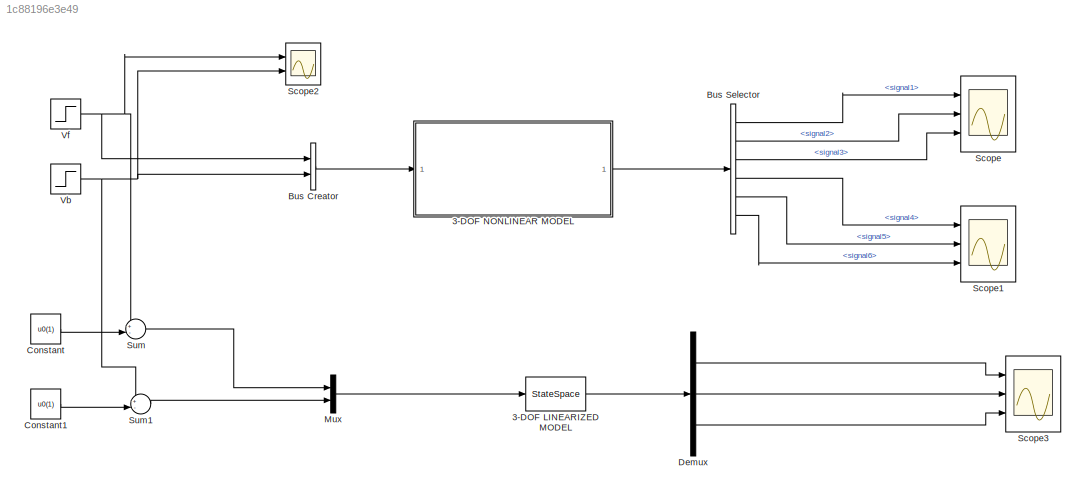
MODEL slx_1c88196e3e49
KIND model
CONFIG AbsTol = auto
CONFIG EnableMultiTasking = on
CONFIG FixedStep = auto
CONFIG MaxStep = auto
CONFIG MinStep = auto
CONFIG RelTol = 1e-3
CONFIG SampleTimeConstraint = Unconstrained
CONFIG SolverName = ode45
CONFIG StartTime = 0.0
CONFIG StopTime = 10
BLOCK [StateSpace] 3-DOF LINEARIZED MODEL
  A = Ad
  B = Bd
  C = Cd
  D = Dd
  InitialCondition = 0
  Ports = [1, 1]
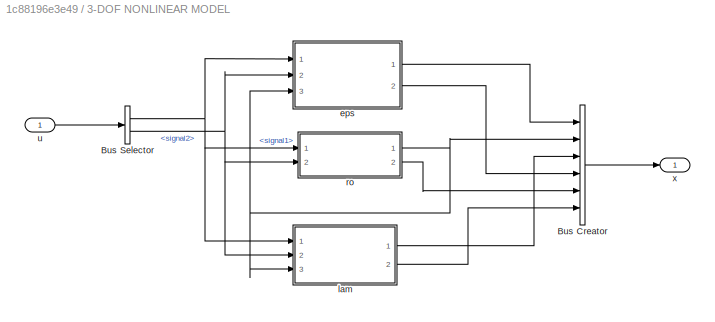
BLOCK [SubSystem] 3-DOF NONLINEAR MODEL
  Ports = [1, 1]
  RequestExecContextInheritance = off
BLOCK [BusCreator] 3-DOF NONLINEAR MODEL/Bus Creator
  DisplayOption = bar
  InheritFromInputs = on
  Inputs = 6
  Ports = [6, 1]
BLOCK [BusSelector] 3-DOF NONLINEAR MODEL/Bus Selector
  OutputSignals = signal1,signal2
  Ports = [1, 2]
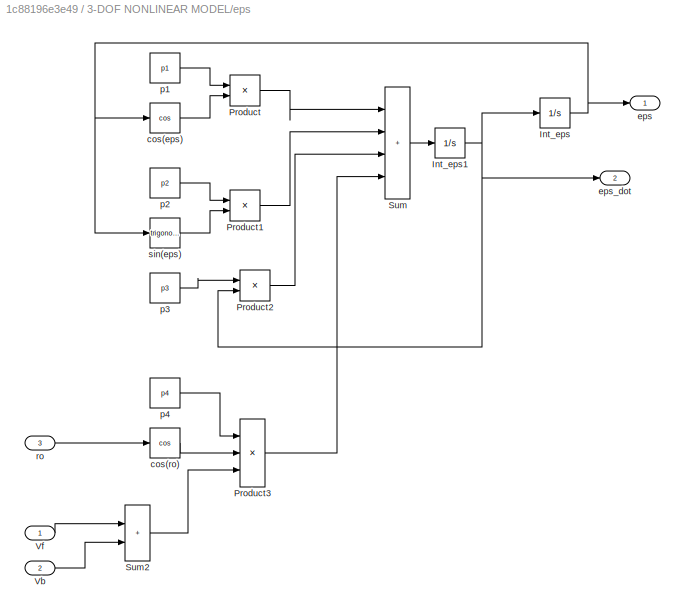
BLOCK [SubSystem] 3-DOF NONLINEAR MODEL/eps
  Ports = [3, 2]
  RequestExecContextInheritance = off
BLOCK [Integrator] 3-DOF NONLINEAR MODEL/eps/Int_eps
  ContinuousStateAttributes = 'eps'
  InitialCondition = eps0
  Ports = [1, 1]
BLOCK [Integrator] 3-DOF NONLINEAR MODEL/eps/Int_eps1
  ContinuousStateAttributes = 'epsdot'
  InitialCondition = eps0dot
  Ports = [1, 1]
BLOCK [Product] 3-DOF NONLINEAR MODEL/eps/Product
  Ports = [2, 1]
  RndMeth = Zero
BLOCK [Product] 3-DOF NONLINEAR MODEL/eps/Product1
  Ports = [2, 1]
  RndMeth = Zero
BLOCK [Product] 3-DOF NONLINEAR MODEL/eps/Product2
  Ports = [2, 1]
  RndMeth = Zero
BLOCK [Product] 3-DOF NONLINEAR MODEL/eps/Product3
  Inputs = 3
  Ports = [3, 1]
  RndMeth = Zero
BLOCK [Sum] 3-DOF NONLINEAR MODEL/eps/Sum
  IconShape = rectangular
  Inputs = |++++
  Ports = [4, 1]
BLOCK [Sum] 3-DOF NONLINEAR MODEL/eps/Sum2
  IconShape = rectangular
  Inputs = |++
  Ports = [2, 1]
BLOCK [Inport] 3-DOF NONLINEAR MODEL/eps/Vb
  Port = 2
BLOCK [Inport] 3-DOF NONLINEAR MODEL/eps/Vf
BLOCK [Trigonometry] 3-DOF NONLINEAR MODEL/eps/cos(eps)
  Operator = cos
  Ports = [1, 1]
BLOCK [Trigonometry] 3-DOF NONLINEAR MODEL/eps/cos(ro)
  Operator = cos
  Ports = [1, 1]
BLOCK [Outport] 3-DOF NONLINEAR MODEL/eps/eps
BLOCK [Outport] 3-DOF NONLINEAR MODEL/eps/eps_dot
  Port = 2
BLOCK [Constant] 3-DOF NONLINEAR MODEL/eps/p1
  Value = p1
BLOCK [Constant] 3-DOF NONLINEAR MODEL/eps/p2
  Value = p2
BLOCK [Constant] 3-DOF NONLINEAR MODEL/eps/p3
  Value = p3
BLOCK [Constant] 3-DOF NONLINEAR MODEL/eps/p4
  Value = p4
BLOCK [Inport] 3-DOF NONLINEAR MODEL/eps/ro
  Port = 3
BLOCK [Trigonometry] 3-DOF NONLINEAR MODEL/eps/sin(eps)
  Ports = [1, 1]
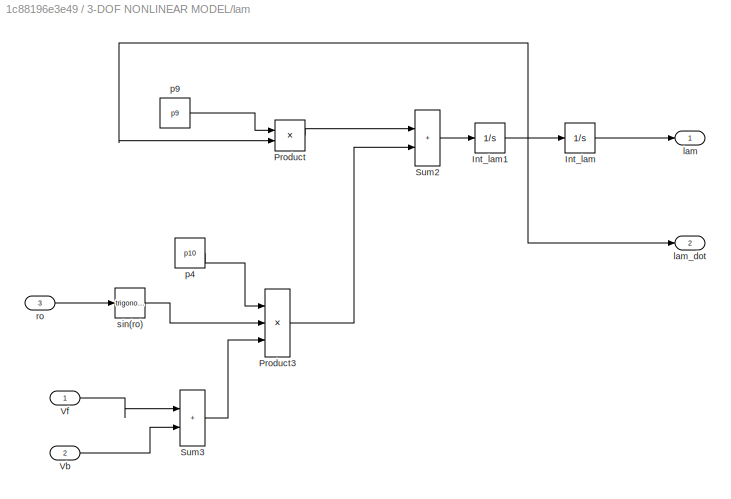
BLOCK [SubSystem] 3-DOF NONLINEAR MODEL/lam
  Ports = [3, 2]
  RequestExecContextInheritance = off
BLOCK [Integrator] 3-DOF NONLINEAR MODEL/lam/Int_lam
  ContinuousStateAttributes = 'lam'
  InitialCondition = lam0
  Ports = [1, 1]
BLOCK [Integrator] 3-DOF NONLINEAR MODEL/lam/Int_lam1
  ContinuousStateAttributes = 'lamdot'
  InitialCondition = lam0dot
  Ports = [1, 1]
BLOCK [Product] 3-DOF NONLINEAR MODEL/lam/Product
  Ports = [2, 1]
  RndMeth = Zero
BLOCK [Product] 3-DOF NONLINEAR MODEL/lam/Product3
  Inputs = 3
  Ports = [3, 1]
  RndMeth = Zero
BLOCK [Sum] 3-DOF NONLINEAR MODEL/lam/Sum2
  IconShape = rectangular
  Inputs = |++
  Ports = [2, 1]
BLOCK [Sum] 3-DOF NONLINEAR MODEL/lam/Sum3
  IconShape = rectangular
  Inputs = |++
  Ports = [2, 1]
BLOCK [Inport] 3-DOF NONLINEAR MODEL/lam/Vb
  Port = 2
BLOCK [Inport] 3-DOF NONLINEAR MODEL/lam/Vf
BLOCK [Outport] 3-DOF NONLINEAR MODEL/lam/lam
BLOCK [Outport] 3-DOF NONLINEAR MODEL/lam/lam_dot
  Port = 2
BLOCK [Constant] 3-DOF NONLINEAR MODEL/lam/p4
  Value = p10
BLOCK [Constant] 3-DOF NONLINEAR MODEL/lam/p9
  Value = p9
BLOCK [Inport] 3-DOF NONLINEAR MODEL/lam/ro
  Port = 3
BLOCK [Trigonometry] 3-DOF NONLINEAR MODEL/lam/sin(ro)
  Ports = [1, 1]
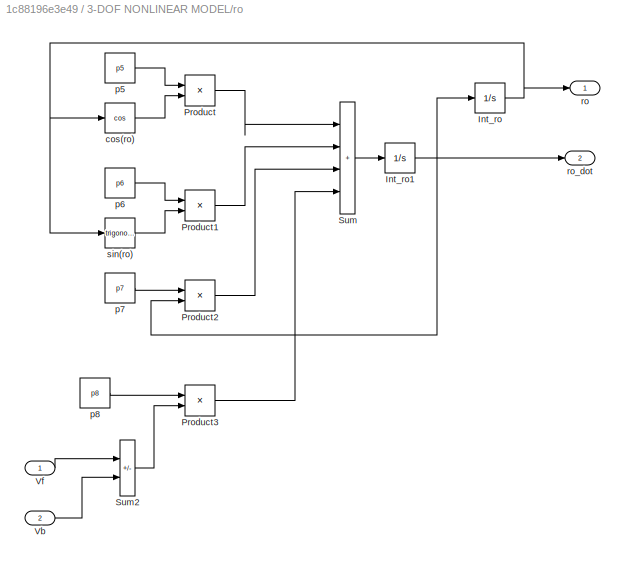
BLOCK [SubSystem] 3-DOF NONLINEAR MODEL/ro
  Ports = [2, 2]
  RequestExecContextInheritance = off
BLOCK [Integrator] 3-DOF NONLINEAR MODEL/ro/Int_ro
  ContinuousStateAttributes = 'ro'
  InitialCondition = ro0
  Ports = [1, 1]
BLOCK [Integrator] 3-DOF NONLINEAR MODEL/ro/Int_ro1
  ContinuousStateAttributes = 'rodot'
  InitialCondition = ro0dot
  Ports = [1, 1]
BLOCK [Product] 3-DOF NONLINEAR MODEL/ro/Product
  Ports = [2, 1]
  RndMeth = Zero
BLOCK [Product] 3-DOF NONLINEAR MODEL/ro/Product1
  Ports = [2, 1]
  RndMeth = Zero
BLOCK [Product] 3-DOF NONLINEAR MODEL/ro/Product2
  Ports = [2, 1]
  RndMeth = Zero
BLOCK [Product] 3-DOF NONLINEAR MODEL/ro/Product3
  Ports = [2, 1]
  RndMeth = Zero
BLOCK [Sum] 3-DOF NONLINEAR MODEL/ro/Sum
  IconShape = rectangular
  Inputs = |++++
  Ports = [4, 1]
BLOCK [Sum] 3-DOF NONLINEAR MODEL/ro/Sum2
  IconShape = rectangular
  Inputs = |+-
  Ports = [2, 1]
BLOCK [Inport] 3-DOF NONLINEAR MODEL/ro/Vb
  Port = 2
BLOCK [Inport] 3-DOF NONLINEAR MODEL/ro/Vf
BLOCK [Trigonometry] 3-DOF NONLINEAR MODEL/ro/cos(ro)
  Operator = cos
  Ports = [1, 1]
BLOCK [Constant] 3-DOF NONLINEAR MODEL/ro/p5
  Value = p5
BLOCK [Constant] 3-DOF NONLINEAR MODEL/ro/p6
  Value = p6
BLOCK [Constant] 3-DOF NONLINEAR MODEL/ro/p7
  Value = p7
BLOCK [Constant] 3-DOF NONLINEAR MODEL/ro/p8
  Value = p8
BLOCK [Outport] 3-DOF NONLINEAR MODEL/ro/ro
BLOCK [Outport] 3-DOF NONLINEAR MODEL/ro/ro_dot
  Port = 2
BLOCK [Trigonometry] 3-DOF NONLINEAR MODEL/ro/sin(ro)
  Ports = [1, 1]
BLOCK [Inport] 3-DOF NONLINEAR MODEL/u
BLOCK [Outport] 3-DOF NONLINEAR MODEL/x
BLOCK [BusCreator] Bus Creator
  DisplayOption = bar
  InheritFromInputs = on
  Inputs = 2
  Ports = [2, 1]
BLOCK [BusSelector] Bus Selector
  OutputSignals = signal1,signal2,signal3,signal4,signal5,signal6
  Ports = [1, 6]
BLOCK [Constant] Constant
  Value = u0(1)
BLOCK [Constant] Constant1
  Value = u0(1)
BLOCK [Demux] Demux
  Outputs = 3
  Ports = [1, 3]
BLOCK [Mux] Mux
  DisplayOption = bar
  Inputs = 2
  Ports = [2, 1]
BLOCK [Scope] Scope
  Floating = off
  NumInputPorts = 3
  Ports = [3]
  ScopeSpecificationString = Simulink.scopes.TimeScopeBlockCfg('CurrentConfiguration', extmgr.ConfigurationSet(extmgr.Configuration('Core','General UI',true),extmgr.Configuration('Core','Source UI',true),extmgr.Configuration('Sources','WiredSimulink',true,'DataLoggingSaveFormat','StructureWithTime','DataLoggingDecimation','1','DataLoggingDecimateData',true),extmgr.Configuration('Visuals','Time Domain',true,'SerializedDisplays...<+2995ch>
BLOCK [Scope] Scope1
  Floating = off
  NumInputPorts = 3
  Ports = [3]
  ScopeSpecificationString = Simulink.scopes.TimeScopeBlockCfg('CurrentConfiguration', extmgr.ConfigurationSet(extmgr.Configuration('Core','General UI',true),extmgr.Configuration('Core','Source UI',true),extmgr.Configuration('Sources','WiredSimulink',true,'DataLoggingVariableName','ScopeData1','DataLoggingSaveFormat','StructureWithTime','DataLoggingDecimation','1','DataLoggingDecimateData',true),extmgr.Configuration('Visuals'...<+3026ch>
BLOCK [Scope] Scope2
  Floating = off
  NumInputPorts = 2
  Ports = [2]
  ScopeSpecificationString = Simulink.scopes.TimeScopeBlockCfg('CurrentConfiguration', extmgr.ConfigurationSet(extmgr.Configuration('Core','General UI',true),extmgr.Configuration('Core','Source UI',true),extmgr.Configuration('Sources','WiredSimulink',true,'DataLoggingVariableName','ScopeData2','DataLoggingSaveFormat','StructureWithTime','DataLoggingDecimation','1','DataLoggingDecimateData',true),extmgr.Configuration('Visuals'...<+2377ch>
BLOCK [Scope] Scope3
  Floating = off
  NumInputPorts = 3
  Ports = [3]
  ScopeSpecificationString = Simulink.scopes.TimeScopeBlockCfg('CurrentConfiguration', extmgr.ConfigurationSet(extmgr.Configuration('Core','General UI',true),extmgr.Configuration('Core','Source UI',true),extmgr.Configuration('Sources','WiredSimulink',true,'DataLoggingSaveFormat','StructureWithTime','DataLoggingDecimation','1','DataLoggingDecimateData',true,'DataLoggingVariableName','ScopeData1'),extmgr.Configuration('Visuals'...<+2956ch>
BLOCK [Sum] Sum
  Inputs = +-|
  Ports = [2, 1]
BLOCK [Sum] Sum1
  Inputs = +-|
  Ports = [2, 1]
BLOCK [Step] Vb
  After = u0(1)
  SampleTime = 0
  Time = 0
BLOCK [Step] Vf
  After = u0(1)
  SampleTime = 0
  Time = 0
LINE 3-DOF LINEARIZED MODEL:1 -> Demux:1
LINE 3-DOF NONLINEAR MODEL/Bus Creator:1 -> 3-DOF NONLINEAR MODEL/x:1
NET 3-DOF NONLINEAR MODEL/Bus Selector:1 -> 3-DOF NONLINEAR MODEL/eps:1, 3-DOF NONLINEAR MODEL/lam:1, 3-DOF NONLINEAR MODEL/ro:1
NET 3-DOF NONLINEAR MODEL/Bus Selector:2 -> 3-DOF NONLINEAR MODEL/eps:2, 3-DOF NONLINEAR MODEL/lam:2, 3-DOF NONLINEAR MODEL/ro:2
NET 3-DOF NONLINEAR MODEL/eps/Int_eps1:1 -> 3-DOF NONLINEAR MODEL/eps/Int_eps:1, 3-DOF NONLINEAR MODEL/eps/Product2:2, 3-DOF NONLINEAR MODEL/eps/eps_dot:1
NET 3-DOF NONLINEAR MODEL/eps/Int_eps:1 -> 3-DOF NONLINEAR MODEL/eps/cos(eps):1, 3-DOF NONLINEAR MODEL/eps/eps:1, 3-DOF NONLINEAR MODEL/eps/sin(eps):1
LINE 3-DOF NONLINEAR MODEL/eps/Product1:1 -> 3-DOF NONLINEAR MODEL/eps/Sum:2
LINE 3-DOF NONLINEAR MODEL/eps/Product2:1 -> 3-DOF NONLINEAR MODEL/eps/Sum:3
LINE 3-DOF NONLINEAR MODEL/eps/Product3:1 -> 3-DOF NONLINEAR MODEL/eps/Sum:4
LINE 3-DOF NONLINEAR MODEL/eps/Product:1 -> 3-DOF NONLINEAR MODEL/eps/Sum:1
LINE 3-DOF NONLINEAR MODEL/eps/Sum2:1 -> 3-DOF NONLINEAR MODEL/eps/Product3:3
LINE 3-DOF NONLINEAR MODEL/eps/Sum:1 -> 3-DOF NONLINEAR MODEL/eps/Int_eps1:1
LINE 3-DOF NONLINEAR MODEL/eps/Vb:1 -> 3-DOF NONLINEAR MODEL/eps/Sum2:2
LINE 3-DOF NONLINEAR MODEL/eps/Vf:1 -> 3-DOF NONLINEAR MODEL/eps/Sum2:1
LINE 3-DOF NONLINEAR MODEL/eps/cos(eps):1 -> 3-DOF NONLINEAR MODEL/eps/Product:2
LINE 3-DOF NONLINEAR MODEL/eps/cos(ro):1 -> 3-DOF NONLINEAR MODEL/eps/Product3:2
LINE 3-DOF NONLINEAR MODEL/eps/p1:1 -> 3-DOF NONLINEAR MODEL/eps/Product:1
LINE 3-DOF NONLINEAR MODEL/eps/p2:1 -> 3-DOF NONLINEAR MODEL/eps/Product1:1
LINE 3-DOF NONLINEAR MODEL/eps/p3:1 -> 3-DOF NONLINEAR MODEL/eps/Product2:1
LINE 3-DOF NONLINEAR MODEL/eps/p4:1 -> 3-DOF NONLINEAR MODEL/eps/Product3:1
LINE 3-DOF NONLINEAR MODEL/eps/ro:1 -> 3-DOF NONLINEAR MODEL/eps/cos(ro):1
LINE 3-DOF NONLINEAR MODEL/eps/sin(eps):1 -> 3-DOF NONLINEAR MODEL/eps/Product1:2
LINE 3-DOF NONLINEAR MODEL/eps:1 -> 3-DOF NONLINEAR MODEL/Bus Creator:1
LINE 3-DOF NONLINEAR MODEL/eps:2 -> 3-DOF NONLINEAR MODEL/Bus Creator:4
NET 3-DOF NONLINEAR MODEL/lam/Int_lam1:1 -> 3-DOF NONLINEAR MODEL/lam/Int_lam:1, 3-DOF NONLINEAR MODEL/lam/Product:2, 3-DOF NONLINEAR MODEL/lam/lam_dot:1
LINE 3-DOF NONLINEAR MODEL/lam/Int_lam:1 -> 3-DOF NONLINEAR MODEL/lam/lam:1
LINE 3-DOF NONLINEAR MODEL/lam/Product3:1 -> 3-DOF NONLINEAR MODEL/lam/Sum2:2
LINE 3-DOF NONLINEAR MODEL/lam/Product:1 -> 3-DOF NONLINEAR MODEL/lam/Sum2:1
LINE 3-DOF NONLINEAR MODEL/lam/Sum2:1 -> 3-DOF NONLINEAR MODEL/lam/Int_lam1:1
LINE 3-DOF NONLINEAR MODEL/lam/Sum3:1 -> 3-DOF NONLINEAR MODEL/lam/Product3:3
LINE 3-DOF NONLINEAR MODEL/lam/Vb:1 -> 3-DOF NONLINEAR MODEL/lam/Sum3:2
LINE 3-DOF NONLINEAR MODEL/lam/Vf:1 -> 3-DOF NONLINEAR MODEL/lam/Sum3:1
LINE 3-DOF NONLINEAR MODEL/lam/p4:1 -> 3-DOF NONLINEAR MODEL/lam/Product3:1
LINE 3-DOF NONLINEAR MODEL/lam/p9:1 -> 3-DOF NONLINEAR MODEL/lam/Product:1
LINE 3-DOF NONLINEAR MODEL/lam/ro:1 -> 3-DOF NONLINEAR MODEL/lam/sin(ro):1
LINE 3-DOF NONLINEAR MODEL/lam/sin(ro):1 -> 3-DOF NONLINEAR MODEL/lam/Product3:2
LINE 3-DOF NONLINEAR MODEL/lam:1 -> 3-DOF NONLINEAR MODEL/Bus Creator:3
LINE 3-DOF NONLINEAR MODEL/lam:2 -> 3-DOF NONLINEAR MODEL/Bus Creator:6
NET 3-DOF NONLINEAR MODEL/ro/Int_ro1:1 -> 3-DOF NONLINEAR MODEL/ro/Int_ro:1, 3-DOF NONLINEAR MODEL/ro/Product2:2, 3-DOF NONLINEAR MODEL/ro/ro_dot:1
NET 3-DOF NONLINEAR MODEL/ro/Int_ro:1 -> 3-DOF NONLINEAR MODEL/ro/cos(ro):1, 3-DOF NONLINEAR MODEL/ro/ro:1, 3-DOF NONLINEAR MODEL/ro/sin(ro):1
LINE 3-DOF NONLINEAR MODEL/ro/Product1:1 -> 3-DOF NONLINEAR MODEL/ro/Sum:2
LINE 3-DOF NONLINEAR MODEL/ro/Product2:1 -> 3-DOF NONLINEAR MODEL/ro/Sum:3
LINE 3-DOF NONLINEAR MODEL/ro/Product3:1 -> 3-DOF NONLINEAR MODEL/ro/Sum:4
LINE 3-DOF NONLINEAR MODEL/ro/Product:1 -> 3-DOF NONLINEAR MODEL/ro/Sum:1
LINE 3-DOF NONLINEAR MODEL/ro/Sum2:1 -> 3-DOF NONLINEAR MODEL/ro/Product3:2
LINE 3-DOF NONLINEAR MODEL/ro/Sum:1 -> 3-DOF NONLINEAR MODEL/ro/Int_ro1:1
LINE 3-DOF NONLINEAR MODEL/ro/Vb:1 -> 3-DOF NONLINEAR MODEL/ro/Sum2:2
LINE 3-DOF NONLINEAR MODEL/ro/Vf:1 -> 3-DOF NONLINEAR MODEL/ro/Sum2:1
LINE 3-DOF NONLINEAR MODEL/ro/cos(ro):1 -> 3-DOF NONLINEAR MODEL/ro/Product:2
LINE 3-DOF NONLINEAR MODEL/ro/p5:1 -> 3-DOF NONLINEAR MODEL/ro/Product:1
LINE 3-DOF NONLINEAR MODEL/ro/p6:1 -> 3-DOF NONLINEAR MODEL/ro/Product1:1
LINE 3-DOF NONLINEAR MODEL/ro/p7:1 -> 3-DOF NONLINEAR MODEL/ro/Product2:1
LINE 3-DOF NONLINEAR MODEL/ro/p8:1 -> 3-DOF NONLINEAR MODEL/ro/Product3:1
LINE 3-DOF NONLINEAR MODEL/ro/sin(ro):1 -> 3-DOF NONLINEAR MODEL/ro/Product1:2
NET 3-DOF NONLINEAR MODEL/ro:1 -> 3-DOF NONLINEAR MODEL/Bus Creator:2, 3-DOF NONLINEAR MODEL/eps:3, 3-DOF NONLINEAR MODEL/lam:3
LINE 3-DOF NONLINEAR MODEL/ro:2 -> 3-DOF NONLINEAR MODEL/Bus Creator:5
LINE 3-DOF NONLINEAR MODEL/u:1 -> 3-DOF NONLINEAR MODEL/Bus Selector:1
LINE 3-DOF NONLINEAR MODEL:1 -> Bus Selector:1
LINE Bus Creator:1 -> 3-DOF NONLINEAR MODEL:1
LINE Bus Selector:1 -> Scope:1
LINE Bus Selector:2 -> Scope:2
LINE Bus Selector:3 -> Scope:3
LINE Bus Selector:4 -> Scope1:1
LINE Bus Selector:5 -> Scope1:2
LINE Bus Selector:6 -> Scope1:3
LINE Constant1:1 -> Sum1:2
LINE Constant:1 -> Sum:2
LINE Demux:1 -> Scope3:1
LINE Demux:2 -> Scope3:2
LINE Demux:3 -> Scope3:3
LINE Mux:1 -> 3-DOF LINEARIZED MODEL:1
LINE Sum1:1 -> Mux:2
LINE Sum:1 -> Mux:1
NET Vb:1 -> Bus Creator:2, Scope2:2, Sum1:1
NET Vf:1 -> Bus Creator:1, Scope2:1, Sum:1
note: NET lines group one-source signal fan-out (src -> all destinations, sorted); 1:1 wires keep LINE
